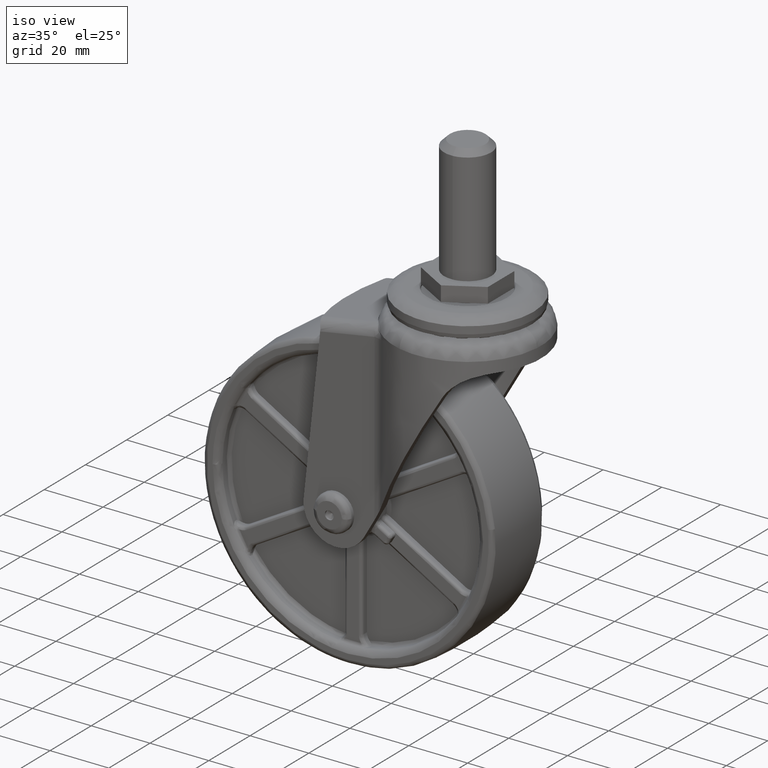
[diagram: clean part render]
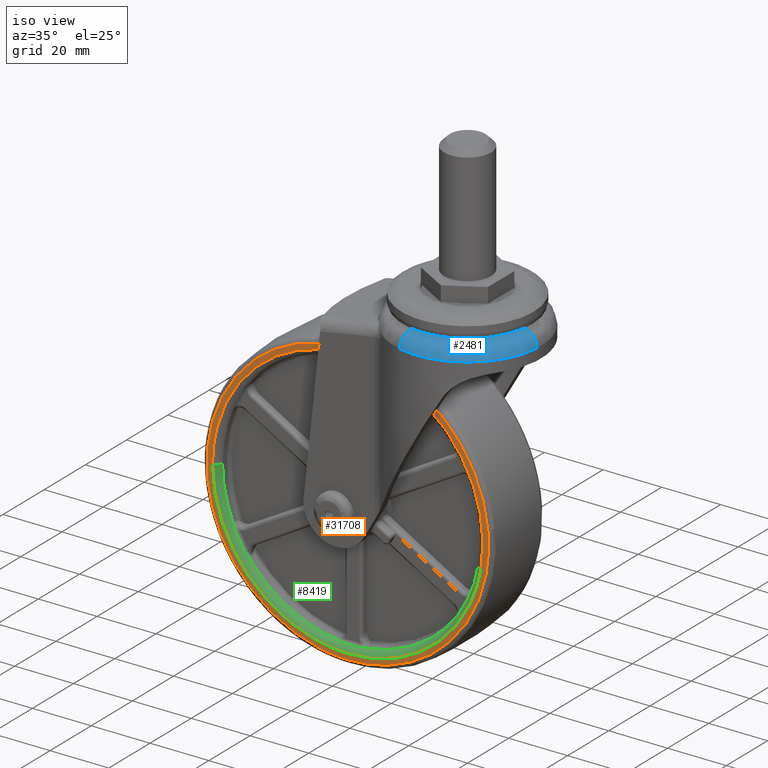
[diagram: same view with three faces highlighted in distinct colors, each labeled with its STEP entity id]
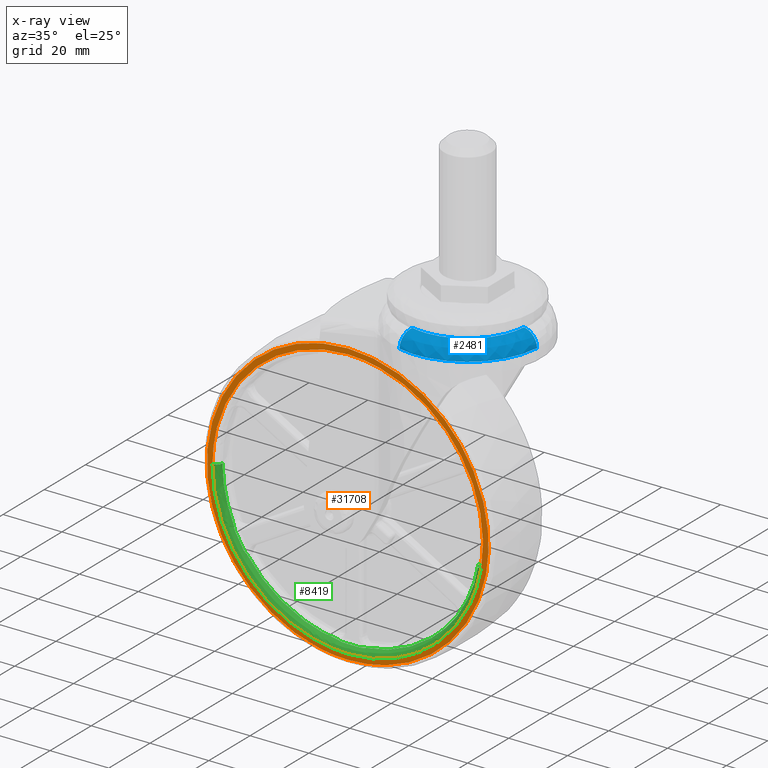
[diagram: x-ray of the same camera — body ghosted, the three highlighted faces saturated]
A machine part, iso view with three faces highlighted in distinct colors.
The next image is the same camera in x-ray (body ghosted, the three faces saturated) — at least one of them is partly hidden behind the body in this view.
Their STEP definitions:

[orange] entity #31708 — the highlighted face is a freeform B-spline surface patch.
#7899=CARTESIAN_POINT('',(45.293938481276633,-12.500000000000000,-8.028720409072545));
#7900=VERTEX_POINT('',#7899);
#7901=CARTESIAN_POINT('',(0.0,-12.500000000000000,46.000031999999813));
#7902=VERTEX_POINT('',#7901);
#7903=CARTESIAN_POINT('',(45.293938481276626,-12.500000000000000,-8.028720409072545));
#7904=CARTESIAN_POINT('',(46.000015999999896,-12.500000000000000,-4.045399771580460));
#7905=CARTESIAN_POINT('',(46.000015999999903,-12.500000000000000,0.000015999999905));
#7906=CARTESIAN_POINT('',(46.000015999999903,-12.499999999999998,46.000031999999813));
#7907=CARTESIAN_POINT('',(0.0,-12.500000000000000,46.000031999999813));
#7915=(BOUNDED_CURVE()B_SPLINE_CURVE(2,(#7903,#7904,#7905,#7906,#7907),.UNSPECIFIED.,.F.,.U.)B_SPLINE_CURVE_WITH_KNOTS((3,2,3),(0.219999999998722,0.250000000000000,0.500000000000000),.UNSPECIFIED.)CURVE()GEOMETRIC_REPRESENTATION_ITEM()RATIONAL_B_SPLINE_CURVE((0.938140952184322,0.964852813740888,1.0,0.707106781186547,1.0))REPRESENTATION_ITEM(''));
#7916=EDGE_CURVE('',#7900,#7902,#7915,.T.);
#7918=CARTESIAN_POINT('',(-46.000015999782612,-12.500000000000000,0.000015999999903));
#7919=VERTEX_POINT('',#7918);
#7920=CARTESIAN_POINT('',(0.0,-12.500000000000000,46.000031999999813));
#7921=CARTESIAN_POINT('',(-46.000015999999675,-12.499999999999998,46.000031999999813));
#7922=CARTESIAN_POINT('',(-46.000015999782605,-12.500000000000005,0.000015999999903));
#7930=(BOUNDED_CURVE()B_SPLINE_CURVE(2,(#7920,#7921,#7922),.UNSPECIFIED.,.F.,.U.)B_SPLINE_CURVE_WITH_KNOTS((3,3),(0.500000000000000,0.749999999999999),.UNSPECIFIED.)CURVE()GEOMETRIC_REPRESENTATION_ITEM()RATIONAL_B_SPLINE_CURVE((1.0,0.707106781186548,0.999999999999998))REPRESENTATION_ITEM(''));
#7931=EDGE_CURVE('',#7902,#7919,#7930,.T.);
#8188=CARTESIAN_POINT('',(0.0,-12.500000000000000,-46.0));
#8189=VERTEX_POINT('',#8188);
#8190=CARTESIAN_POINT('',(0.0,-12.500000000000000,-46.0));
#8191=CARTESIAN_POINT('',(38.563205740525859,-12.499999999999998,-46.0));
#8192=CARTESIAN_POINT('',(45.293938481276626,-12.500000000000000,-8.028720409072545));
#8200=(BOUNDED_CURVE()B_SPLINE_CURVE(2,(#8190,#8191,#8192),.UNSPECIFIED.,.F.,.U.)B_SPLINE_CURVE_WITH_KNOTS((3,3),(0.0,0.219999999998722),.UNSPECIFIED.)CURVE()GEOMETRIC_REPRESENTATION_ITEM()RATIONAL_B_SPLINE_CURVE((1.0,0.742253967445659,0.938140952184322))REPRESENTATION_ITEM(''));
#8201=EDGE_CURVE('',#8189,#7900,#8200,.T.);
#8404=CARTESIAN_POINT('',(-46.000015999782612,-12.500000000000000,0.000015999999903));
#8405=CARTESIAN_POINT('',(-46.000015999999903,-12.499999999999998,-46.000000000000014));
#8406=CARTESIAN_POINT('',(0.0,-12.500000000000000,-46.0));
#8414=(BOUNDED_CURVE()B_SPLINE_CURVE(2,(#8404,#8405,#8406),.UNSPECIFIED.,.F.,.U.)B_SPLINE_CURVE_WITH_KNOTS((3,3),(0.750000000000000,1.0),.UNSPECIFIED.)CURVE()GEOMETRIC_REPRESENTATION_ITEM()RATIONAL_B_SPLINE_CURVE((1.0,0.707106781186547,1.0))REPRESENTATION_ITEM(''));
#8415=EDGE_CURVE('',#7919,#8189,#8414,.T.);
#8437=CARTESIAN_POINT('',(13.047281524651630,-12.499999999999870,-46.072017325498422));
#8438=VERTEX_POINT('',#8437);
#8439=CARTESIAN_POINT('',(47.642092715833982,-12.499999999999860,4.805722052717872));
#8440=VERTEX_POINT('',#8439);
#8441=CARTESIAN_POINT('',(13.047281524651623,-12.499999999999867,-46.072017325498422));
#8442=CARTESIAN_POINT('',(47.883857476401104,-12.499999999999799,-36.206539668898579));
#8443=CARTESIAN_POINT('',(47.883857476401097,-12.499999999999799,0.000015999999905));
#8444=CARTESIAN_POINT('',(47.883857476401104,-12.499999999999796,2.408950359752350));
#8445=CARTESIAN_POINT('',(47.642092715833982,-12.499999999999867,4.805722052717872));
#8453=(BOUNDED_CURVE()B_SPLINE_CURVE(2,(#8441,#8442,#8443,#8444,#8445),.UNSPECIFIED.,.F.,.U.)B_SPLINE_CURVE_WITH_KNOTS((3,2,3),(0.046426116459208,0.250000000000000,0.267423441084999),.UNSPECIFIED.)CURVE()GEOMETRIC_REPRESENTATION_ITEM()RATIONAL_B_SPLINE_CURVE((0.911418360660495,0.761498359933530,1.0,0.979587169031232,0.962019632124563))REPRESENTATION_ITEM(''));
#8454=EDGE_CURVE('',#8438,#8440,#8453,.T.);
#8539=CARTESIAN_POINT('',(0.0,-12.499999999999799,-47.883841476401201));
#8540=VERTEX_POINT('',#8539);
#8541=CARTESIAN_POINT('',(0.0,-12.499999999999799,-47.883841476401201));
#8542=CARTESIAN_POINT('',(6.649441173433361,-12.499999999999805,-47.883841476401201));
#8543=CARTESIAN_POINT('',(13.047281524651623,-12.499999999999867,-46.072017325498422));
#8551=(BOUNDED_CURVE()B_SPLINE_CURVE(2,(#8541,#8542,#8543),.UNSPECIFIED.,.F.,.U.)B_SPLINE_CURVE_WITH_KNOTS((3,3),(0.0,0.046426116459208),.UNSPECIFIED.)CURVE()GEOMETRIC_REPRESENTATION_ITEM()RATIONAL_B_SPLINE_CURVE((1.0,0.945608421253017,0.911418360660495))REPRESENTATION_ITEM(''));
#8552=EDGE_CURVE('',#8540,#8438,#8551,.T.);
#8554=CARTESIAN_POINT('',(0.0,-12.499999999999799,47.883873476401000));
#8555=VERTEX_POINT('',#8554);
#8556=CARTESIAN_POINT('',(0.0,-12.499999999999799,47.883873476401000));
#8557=CARTESIAN_POINT('',(-47.883857476401097,-12.499999999999797,47.883873476400986));
#8558=CARTESIAN_POINT('',(-47.883857476401097,-12.499999999999799,0.000015999999905));
#8559=CARTESIAN_POINT('',(-47.883857476401097,-12.499999999999797,-47.883841476401201));
#8560=CARTESIAN_POINT('',(0.0,-12.499999999999799,-47.883841476401201));
#8568=(BOUNDED_CURVE()B_SPLINE_CURVE(2,(#8556,#8557,#8558,#8559,#8560),.UNSPECIFIED.,.F.,.U.)B_SPLINE_CURVE_WITH_KNOTS((3,2,3),(0.500000000000000,0.750000000000000,1.0),.UNSPECIFIED.)CURVE()GEOMETRIC_REPRESENTATION_ITEM()RATIONAL_B_SPLINE_CURVE((1.0,0.707106781186547,1.0,0.707106781186547,1.0))REPRESENTATION_ITEM(''));
#8569=EDGE_CURVE('',#8555,#8540,#8568,.T.);
#8571=CARTESIAN_POINT('',(47.642092715833989,-12.499999999999863,4.805722052717872));
#8572=CARTESIAN_POINT('',(43.296756011516003,-12.499999999999797,47.883873476401000));
#8573=CARTESIAN_POINT('',(0.0,-12.499999999999799,47.883873476401000));
#8581=(BOUNDED_CURVE()B_SPLINE_CURVE(2,(#8571,#8572,#8573),.UNSPECIFIED.,.F.,.U.)B_SPLINE_CURVE_WITH_KNOTS((3,3),(0.267423441084999,0.500000000000000),.UNSPECIFIED.)CURVE()GEOMETRIC_REPRESENTATION_ITEM()RATIONAL_B_SPLINE_CURVE((0.962019632124563,0.727519612155315,1.0))REPRESENTATION_ITEM(''));
#8582=EDGE_CURVE('',#8440,#8555,#8581,.T.);
#31691=CARTESIAN_POINT('',(-52.667388072905418,-12.500000000000000,-52.667439551676047));
#31692=CARTESIAN_POINT('',(-52.667388072905418,-12.500000000000000,52.667473264136042));
#31693=CARTESIAN_POINT('',(52.666038862002772,-12.500000000000000,-52.667439551676047));
#31694=CARTESIAN_POINT('',(52.666038862002772,-12.500000000000000,52.667473264136042));
#31695=B_SPLINE_SURFACE_WITH_KNOTS('',1,1,((#31691,#31693),(#31692,#31694)),.UNSPECIFIED.,.F.,.F.,.U.,(2,2),(2,2),(0.0,105.334912815812100),(0.0,105.333426934908200),.UNSPECIFIED.);
#31696=ORIENTED_EDGE('',*,*,#8552,.T.);
#31697=ORIENTED_EDGE('',*,*,#8454,.T.);
#31698=ORIENTED_EDGE('',*,*,#8582,.T.);
#31699=ORIENTED_EDGE('',*,*,#8569,.T.);
#31700=EDGE_LOOP('',(#31696,#31697,#31698,#31699));
#31701=FACE_OUTER_BOUND('',#31700,.T.);
#31702=ORIENTED_EDGE('',*,*,#7931,.F.);
#31703=ORIENTED_EDGE('',*,*,#7916,.F.);
#31704=ORIENTED_EDGE('',*,*,#8201,.F.);
#31705=ORIENTED_EDGE('',*,*,#8415,.F.);
#31706=EDGE_LOOP('',(#31702,#31703,#31704,#31705));
#31707=FACE_BOUND('',#31706,.T.);
#31708=ADVANCED_FACE('',(#31701,#31707),#31695,.F.);

[blue] entity #2481 — the highlighted face is a freeform B-spline surface patch.
#1932=CARTESIAN_POINT('',(26.969912259548838,-19.631068602107771,64.092954920131646));
#1933=VERTEX_POINT('',#1932);
#1947=CARTESIAN_POINT('',(32.0,-20.265256893034088,64.092954920389403));
#1948=VERTEX_POINT('',#1947);
#1949=CARTESIAN_POINT('',(26.969912259548842,-19.631068602107774,64.092954920131660));
#1950=CARTESIAN_POINT('',(29.444977225694672,-20.265256893034085,64.092954920389417));
#1951=CARTESIAN_POINT('',(32.0,-20.265256893034088,64.092954920389403));
#1959=(BOUNDED_CURVE()B_SPLINE_CURVE(2,(#1949,#1950,#1951),.UNSPECIFIED.,.F.,.U.)B_SPLINE_CURVE_WITH_KNOTS((3,3),(0.957636715734862,1.0),.UNSPECIFIED.)CURVE()GEOMETRIC_REPRESENTATION_ITEM()RATIONAL_B_SPLINE_CURVE((0.917557136465086,0.950368325248298,1.0))REPRESENTATION_ITEM(''));
#1960=EDGE_CURVE('',#1933,#1948,#1959,.T.);
#1962=CARTESIAN_POINT('',(52.207681284533273,-1.526517066455569,64.092954919982020));
#1963=VERTEX_POINT('',#1962);
#1964=CARTESIAN_POINT('',(32.0,-20.265256893034088,64.092954920389403));
#1965=CARTESIAN_POINT('',(50.792130142412738,-20.265256893034088,64.092954920389417));
#1966=CARTESIAN_POINT('',(52.207681284533280,-1.526517066455569,64.092954919982034));
#1974=(BOUNDED_CURVE()B_SPLINE_CURVE(2,(#1964,#1965,#1966),.UNSPECIFIED.,.F.,.U.)B_SPLINE_CURVE_WITH_KNOTS((3,3),(0.0,0.236870159246673),.UNSPECIFIED.)CURVE()GEOMETRIC_REPRESENTATION_ITEM()RATIONAL_B_SPLINE_CURVE((1.0,0.722489346469547,0.970850634494348))REPRESENTATION_ITEM(''));
#1975=EDGE_CURVE('',#1948,#1963,#1974,.T.);
#2409=CARTESIAN_POINT('',(25.797552058391645,-24.206472597770535,58.760645968007523));
#2410=CARTESIAN_POINT('',(27.926361013958630,-24.751939380309938,58.760645968007509));
#2411=CARTESIAN_POINT('',(30.117698314826253,-24.917476125421903,58.760645968007523));
#2412=CARTESIAN_POINT('',(55.035174440248142,-26.799777810595643,58.760645968007502));
#2413=CARTESIAN_POINT('',(56.917476125421899,-1.882301685173753,58.760645968007523));
#2414=CARTESIAN_POINT('',(25.706069290830669,-24.563505035121239,64.178600961011171));
#2415=CARTESIAN_POINT('',(27.866277032279811,-25.117017159007968,64.178600961011171));
#2416=CARTESIAN_POINT('',(30.089935378455724,-25.284995481980541,64.178600961011199));
#2417=CARTESIAN_POINT('',(55.374930860436251,-27.195060103524813,64.178600961011171));
#2418=CARTESIAN_POINT('',(57.284995481980545,-1.910064621544283,64.178600961011199));
#2419=CARTESIAN_POINT('',(27.053837742560908,-19.303530199042537,64.099465073866227));
#2420=CARTESIAN_POINT('',(28.751463358841914,-19.738514456529678,64.099465073866241));
#2421=CARTESIAN_POINT('',(30.498952407183580,-19.870522271605314,64.099465073866256));
#2422=CARTESIAN_POINT('',(50.369474678788897,-21.371569864421726,64.099465073866241));
#2423=CARTESIAN_POINT('',(51.870522271605317,-1.501047592816425,64.099465073866256));
#2431=(BOUNDED_SURFACE()B_SPLINE_SURFACE(2,2,((#2409,#2414,#2419),(#2410,#2415,#2420),(#2411,#2416,#2421),(#2412,#2417,#2422),(#2413,#2418,#2423)),.UNSPECIFIED.,.F.,.F.,.U.)B_SPLINE_SURFACE_WITH_KNOTS((3,2,3),(3,3),(0.0,4.968270496616766,46.370524635089780),(0.0,8.771739623110403),.UNSPECIFIED.)GEOMETRIC_REPRESENTATION_ITEM()RATIONAL_B_SPLINE_SURFACE(((0.855134330751830,0.580428527459014,0.858698242481451),(0.879482729360166,0.596955176713987,0.883148117010327),(0.911520095950082,0.618700767838952,0.915319004548321),(0.644542041034115,0.437487508464247,0.647228275065038),(0.911520095950082,0.618700767838952,0.915319004548321)))REPRESENTATION_ITEM('')SURFACE());
#2432=CARTESIAN_POINT('',(56.928972506515372,-1.883170138198115,59.099996000591162));
#2433=VERTEX_POINT('',#2432);
#2434=CARTESIAN_POINT('',(25.794690383924191,-24.217640937313341,59.099996000639081));
#2435=VERTEX_POINT('',#2434);
#2436=CARTESIAN_POINT('',(56.928972506515372,-1.883170138198115,59.099996000591162));
#2437=CARTESIAN_POINT('',(56.241203337601270,-10.987699970587959,59.099995999999791));
#2438=CARTESIAN_POINT('',(49.847679665429922,-17.506008413119179,59.099995999999798));
#2439=CARTESIAN_POINT('',(39.755757235870917,-27.794898631871423,59.099995999999813));
#2440=CARTESIAN_POINT('',(25.794690383924184,-24.217640937313345,59.099996000639081));
#2448=(BOUNDED_CURVE()B_SPLINE_CURVE(2,(#2436,#2437,#2438,#2439,#2440),.UNSPECIFIED.,.F.,.U.)B_SPLINE_CURVE_WITH_KNOTS((3,2,3),(0.515386032396076,0.666666666666667,0.888775045343579),.UNSPECIFIED.)CURVE()GEOMETRIC_REPRESENTATION_ITEM()RATIONAL_B_SPLINE_CURVE((0.858172621695735,0.870159044574793,1.0,0.809369095823786,0.872782517961328))REPRESENTATION_ITEM(''));
#2449=EDGE_CURVE('',#2433,#2435,#2448,.T.);
#2450=ORIENTED_EDGE('',*,*,#2449,.F.);
#2451=CARTESIAN_POINT('',(56.928972506515365,-1.883170138198116,59.099996000591162));
#2452=CARTESIAN_POINT('',(56.928972505396970,-1.883170138113829,63.841416035649090));
#2453=CARTESIAN_POINT('',(52.207681284533273,-1.526517066455569,64.092954919982020));
#2461=(BOUNDED_CURVE()B_SPLINE_CURVE(2,(#2451,#2452,#2453),.UNSPECIFIED.,.F.,.U.)B_SPLINE_CURVE_WITH_KNOTS((3,3),(-1.716453736593590,-0.273316165559243),.UNSPECIFIED.)CURVE()GEOMETRIC_REPRESENTATION_ITEM()RATIONAL_B_SPLINE_CURVE((0.886139893874123,0.644253500662695,0.889593740708974))REPRESENTATION_ITEM(''));
#2462=EDGE_CURVE('',#2433,#1963,#2461,.T.);
#2463=ORIENTED_EDGE('',*,*,#2462,.T.);
#2464=ORIENTED_EDGE('',*,*,#1975,.F.);
#2465=ORIENTED_EDGE('',*,*,#1960,.F.);
#2466=CARTESIAN_POINT('',(25.794690383924195,-24.217640937313345,59.099996000639095));
#2467=CARTESIAN_POINT('',(25.794690384224026,-24.217640936138594,63.841416041010930));
#2468=CARTESIAN_POINT('',(26.969912259548831,-19.631068602107764,64.092954920131646));
#2476=(BOUNDED_CURVE()B_SPLINE_CURVE(2,(#2466,#2467,#2468),.UNSPECIFIED.,.F.,.U.)B_SPLINE_CURVE_WITH_KNOTS((3,3),(-1.716453736573530,-0.273316164373814),.UNSPECIFIED.)CURVE()GEOMETRIC_REPRESENTATION_ITEM()RATIONAL_B_SPLINE_CURVE((0.831324123803293,0.604400592378049,0.834564319346080))REPRESENTATION_ITEM(''));
#2477=EDGE_CURVE('',#2435,#1933,#2476,.T.);
#2478=ORIENTED_EDGE('',*,*,#2477,.F.);
#2479=EDGE_LOOP('',(#2450,#2463,#2464,#2465,#2478));
#2480=FACE_OUTER_BOUND('',#2479,.T.);
#2481=ADVANCED_FACE('',(#2480),#2431,.T.);

[green] entity #8419 — the highlighted face is a freeform B-spline surface patch.
#7899=CARTESIAN_POINT('',(45.293938481276633,-12.500000000000000,-8.028720409072545));
#7900=VERTEX_POINT('',#7899);
#7918=CARTESIAN_POINT('',(-46.000015999782612,-12.500000000000000,0.000015999999903));
#7919=VERTEX_POINT('',#7918);
#7933=CARTESIAN_POINT('',(-44.000015999999903,-10.500000000989001,0.000015999999903));
#7934=VERTEX_POINT('',#7933);
#7935=CARTESIAN_POINT('',(-46.000015999782612,-12.500000000000002,0.000015999999903));
#7936=CARTESIAN_POINT('',(-44.000016001977890,-12.499999999565423,0.000015999999903));
#7937=CARTESIAN_POINT('',(-44.000015999999896,-10.500000000988997,0.000015999999903));
#7945=(BOUNDED_CURVE()B_SPLINE_CURVE(2,(#7935,#7936,#7937),.UNSPECIFIED.,.F.,.U.)B_SPLINE_CURVE_WITH_KNOTS((3,3),(-1.726807299291639,-0.285995335049995),.UNSPECIFIED.)CURVE()GEOMETRIC_REPRESENTATION_ITEM()RATIONAL_B_SPLINE_CURVE((0.882788776138873,0.622603437960140,0.878205638697899))REPRESENTATION_ITEM(''));
#7946=EDGE_CURVE('',#7919,#7934,#7945,.T.);
#8134=CARTESIAN_POINT('',(43.324637498588991,-10.500000001020981,-7.679645035234842));
#8135=VERTEX_POINT('',#8134);
#8149=CARTESIAN_POINT('',(45.293938481276641,-12.500000000000002,-8.028720409072545));
#8150=CARTESIAN_POINT('',(43.324637500599572,-12.499999988517210,-7.679645035591385));
#8151=CARTESIAN_POINT('',(43.324637498588991,-10.500000001020982,-7.679645035234842));
#8159=(BOUNDED_CURVE()B_SPLINE_CURVE(2,(#8149,#8150,#8151),.UNSPECIFIED.,.F.,.U.)B_SPLINE_CURVE_WITH_KNOTS((3,3),(-1.726807293648970,-0.285995335082501),.UNSPECIFIED.)CURVE()GEOMETRIC_REPRESENTATION_ITEM()RATIONAL_B_SPLINE_CURVE((0.828180301114695,0.584089783067178,0.823880674092867))REPRESENTATION_ITEM(''));
#8160=EDGE_CURVE('',#7900,#8135,#8159,.T.);
#8165=CARTESIAN_POINT('',(-46.138717737874487,-12.495184660103060,0.000015999999904));
#8166=CARTESIAN_POINT('',(-46.138717737874508,-12.495184660103060,-46.138701737874591));
#8167=CARTESIAN_POINT('',(-5.650177E-015,-12.495184660103060,-46.138701737874605));
#8168=CARTESIAN_POINT('',(38.679483605910818,-12.495184660103064,-46.138701737874605));
#8169=CARTESIAN_POINT('',(45.430511221703512,-12.495184660103064,-8.052929090457713));
#8170=CARTESIAN_POINT('',(-43.844537356109534,-12.654672056087859,0.000015999999904));
#8171=CARTESIAN_POINT('',(-43.844537356109541,-12.654672056087858,-43.844521356109631));
#8172=CARTESIAN_POINT('',(-5.369230E-015,-12.654672056087859,-43.844521356109645));
#8173=CARTESIAN_POINT('',(36.756202751648203,-12.654672056087859,-43.844521356109631));
#8174=CARTESIAN_POINT('',(43.171545375046975,-12.654672056087858,-7.652508152300763));
#8175=CARTESIAN_POINT('',(-44.004883392036774,-10.360551526927354,0.000015999999904));
#8176=CARTESIAN_POINT('',(-44.004883392036774,-10.360551526927354,-44.004867392036871));
#8177=CARTESIAN_POINT('',(-5.388866E-015,-10.360551526927354,-44.004867392036864));
#8178=CARTESIAN_POINT('',(36.890625686918227,-10.360551526927349,-44.004867392036864));
#8179=CARTESIAN_POINT('',(43.329430178563477,-10.360551526927351,-7.680494578584445));
#8187=(BOUNDED_SURFACE()B_SPLINE_SURFACE(2,2,((#8165,#8170,#8175),(#8166,#8171,#8176),(#8167,#8172,#8177),(#8168,#8173,#8178),(#8169,#8174,#8179)),.UNSPECIFIED.,.F.,.F.,.U.)B_SPLINE_SURFACE_WITH_KNOTS((3,2,3),(3,3),(0.0,76.445130550126834,143.716845434238510),(0.0,3.644741489769000),.UNSPECIFIED.)GEOMETRIC_REPRESENTATION_ITEM()RATIONAL_B_SPLINE_SURFACE(((0.910068305580795,0.595552895635508,0.905027195777847),(0.643515470219132,0.421119491059152,0.639950867292760),(0.910068305580795,0.595552895635508,0.905027195777847),(0.675501810462531,0.442051499608314,0.671760026710971),(0.853772346752412,0.558712560588981,0.849043075201796)))REPRESENTATION_ITEM('')SURFACE());
#8188=CARTESIAN_POINT('',(0.0,-12.500000000000000,-46.0));
#8189=VERTEX_POINT('',#8188);
#8190=CARTESIAN_POINT('',(0.0,-12.500000000000000,-46.0));
#8191=CARTESIAN_POINT('',(38.563205740525859,-12.499999999999998,-46.0));
#8192=CARTESIAN_POINT('',(45.293938481276626,-12.500000000000000,-8.028720409072545));
#8200=(BOUNDED_CURVE()B_SPLINE_CURVE(2,(#8190,#8191,#8192),.UNSPECIFIED.,.F.,.U.)B_SPLINE_CURVE_WITH_KNOTS((3,3),(0.0,0.219999999998722),.UNSPECIFIED.)CURVE()GEOMETRIC_REPRESENTATION_ITEM()RATIONAL_B_SPLINE_CURVE((1.0,0.742253967445659,0.938140952184322))REPRESENTATION_ITEM(''));
#8201=EDGE_CURVE('',#8189,#7900,#8200,.T.);
#8202=ORIENTED_EDGE('',*,*,#8201,.T.);
#8203=ORIENTED_EDGE('',*,*,#8160,.T.);
#8204=CARTESIAN_POINT('',(40.118443753310451,-10.500000000000000,-18.069623697921902));
#8205=VERTEX_POINT('',#8204);
#8206=CARTESIAN_POINT('',(40.118443753310473,-10.500000000000000,-18.069623697921902));
#8207=CARTESIAN_POINT('',(42.368398669729366,-10.500000000000004,-13.074245191718624));
#8208=CARTESIAN_POINT('',(43.324637498588991,-10.500000001020981,-7.679645035234842));
#8216=(BOUNDED_CURVE()B_SPLINE_CURVE(2,(#8206,#8207,#8208),.UNSPECIFIED.,.F.,.U.)B_SPLINE_CURVE_WITH_KNOTS((3,3),(0.0,0.295300712722245),.UNSPECIFIED.)CURVE()GEOMETRIC_REPRESENTATION_ITEM()RATIONAL_B_SPLINE_CURVE((1.0,0.973949360840993,0.963284266303036))REPRESENTATION_ITEM(''));
#8217=EDGE_CURVE('',#8205,#8135,#8216,.T.);
#8218=ORIENTED_EDGE('',*,*,#8217,.F.);
#8219=CARTESIAN_POINT('',(39.453646345311448,-10.833333333333339,-19.541571478034101));
#8220=VERTEX_POINT('',#8219);
#8221=CARTESIAN_POINT('',(40.118443753310451,-10.500000000000000,-18.069623697921902));
#8222=CARTESIAN_POINT('',(40.066106034722807,-10.555534149519030,-18.185824566032391));
#8223=CARTESIAN_POINT('',(40.014406278073551,-10.604382256675541,-18.304825488480560));
#8224=CARTESIAN_POINT('',(39.909332556225039,-10.688103293614811,-18.547364860841320));
#8225=CARTESIAN_POINT('',(39.855797982633042,-10.723052136331811,-18.671246132333678));
#8226=CARTESIAN_POINT('',(39.746455725023907,-10.778383264959411,-18.919164311274919));
#8227=CARTESIAN_POINT('',(39.690516530061309,-10.798940711745161,-19.043525651177141));
#8228=CARTESIAN_POINT('',(39.574957471281287,-10.826409011963950,-19.292447328135911));
#8229=CARTESIAN_POINT('',(39.515343096318027,-10.833333333333290,-19.417008322782749));
#8230=CARTESIAN_POINT('',(39.453646345311448,-10.833333333333339,-19.541571478034101));
#8231=B_SPLINE_CURVE_WITH_KNOTS('',3,(#8221,#8222,#8223,#8224,#8225,#8226,#8227,#8228,#8229,#8230),.UNSPECIFIED.,.F.,.U.,(4,2,2,2,4),(0.0,0.250000000000000,0.500000000000000,0.750000000000000,1.0),.UNSPECIFIED.);
#8232=EDGE_CURVE('',#8205,#8220,#8231,.T.);
#8233=ORIENTED_EDGE('',*,*,#8232,.T.);
#8234=CARTESIAN_POINT('',(36.650319252802802,-10.833333333333339,-24.397072960984701));
#8235=VERTEX_POINT('',#8234);
#8236=CARTESIAN_POINT('',(39.453646345311491,-10.833333333333320,-19.541571478034129));
#8237=CARTESIAN_POINT('',(38.206875480835613,-10.833333333333320,-22.058749614967052));
#8238=CARTESIAN_POINT('',(36.650319252802838,-10.833333333333320,-24.397072960984708));
#8246=(BOUNDED_CURVE()B_SPLINE_CURVE(2,(#8236,#8237,#8238),.UNSPECIFIED.,.F.,.U.)CURVE()GEOMETRIC_REPRESENTATION_ITEM()QUASI_UNIFORM_CURVE()RATIONAL_B_SPLINE_CURVE((1.0,0.997970915121706,1.0))REPRESENTATION_ITEM(''));
#8247=EDGE_CURVE('',#8220,#8235,#8246,.T.);
#8248=ORIENTED_EDGE('',*,*,#8247,.T.);
#8249=CARTESIAN_POINT('',(35.707973834255000,-10.500000000000000,-25.708776516421551));
#8250=VERTEX_POINT('',#8249);
#8251=CARTESIAN_POINT('',(36.650319252802802,-10.833333333333339,-24.397072960984701));
#8252=CARTESIAN_POINT('',(36.573306741766352,-10.833333333333350,-24.512764350250851));
#8253=CARTESIAN_POINT('',(36.495074255358901,-10.826411375329910,-24.626922507808189));
#8254=CARTESIAN_POINT('',(36.376193843874717,-10.805673351860520,-24.796070026283211));
#8255=CARTESIAN_POINT('',(36.336316593622222,-10.797026687121519,-24.852106800914051));
#8256=CARTESIAN_POINT('',(36.256173906347350,-10.776187622213770,-24.963559548037260));
#8257=CARTESIAN_POINT('',(36.215955051833511,-10.763999834412090,-25.018908812008370));
#8258=CARTESIAN_POINT('',(36.095818709328213,-10.722306056279610,-25.183014891052590));
#8259=CARTESIAN_POINT('',(36.016133099381967,-10.687600992278851,-25.290185524057769));
#8260=CARTESIAN_POINT('',(35.859428611727679,-10.604226131822090,-25.501370976007760));
#8261=CARTESIAN_POINT('',(35.782417875165393,-10.555519268980500,-25.605378199940489));
#8262=CARTESIAN_POINT('',(35.707973834255000,-10.500000000000000,-25.708776516421551));
#8263=B_SPLINE_CURVE_WITH_KNOTS('',3,(#8251,#8252,#8253,#8254,#8255,#8256,#8257,#8258,#8259,#8260,#8261,#8262),.UNSPECIFIED.,.F.,.U.,(4,2,2,2,2,4),(0.0,0.249999999999991,0.374999999999990,0.499999999999989,0.749999999999994,1.0),.UNSPECIFIED.);
#8264=EDGE_CURVE('',#8235,#8250,#8263,.T.);
#8265=ORIENTED_EDGE('',*,*,#8264,.T.);
#8266=CARTESIAN_POINT('',(4.410459900544764,-10.500000000000000,-43.778394791918252));
#8267=VERTEX_POINT('',#8266);
#8268=CARTESIAN_POINT('',(4.410459900544763,-10.500000000000000,-43.778394791918231));
#8269=CARTESIAN_POINT('',(24.128556996435613,-10.500000000000000,-41.791893341012901));
#8270=CARTESIAN_POINT('',(35.707973834254993,-10.500000000000000,-25.708776516421540));
#8278=(BOUNDED_CURVE()B_SPLINE_CURVE(2,(#8268,#8269,#8270),.UNSPECIFIED.,.F.,.U.)CURVE()GEOMETRIC_REPRESENTATION_ITEM()QUASI_UNIFORM_CURVE()RATIONAL_B_SPLINE_CURVE((1.0,0.911782624924028,1.0))REPRESENTATION_ITEM(''));
#8279=EDGE_CURVE('',#8267,#8250,#8278,.T.);
#8280=ORIENTED_EDGE('',*,*,#8279,.F.);
#8281=CARTESIAN_POINT('',(2.803320422803545,-10.833333333333339,-43.938637207735752));
#8282=VERTEX_POINT('',#8281);
#8283=CARTESIAN_POINT('',(4.410459900544764,-10.500000000000000,-43.778394791918252));
#8284=CARTESIAN_POINT('',(4.283658452308537,-10.555534202971780,-43.791169415132153));
#8285=CARTESIAN_POINT('',(4.154751047995728,-10.604382328994269,-43.805896565324822));
#8286=CARTESIAN_POINT('',(3.892169495805590,-10.688103377983040,-43.836169727224778));
#8287=CARTESIAN_POINT('',(3.758118157308873,-10.723052211310691,-43.851748058519377));
#8288=CARTESIAN_POINT('',(3.488744152801936,-10.778383312116150,-43.881013968684883));
#8289=CARTESIAN_POINT('',(3.353074754850528,-10.798940742852260,-43.894749873363452));
#8290=CARTESIAN_POINT('',(3.079723282710091,-10.826409019616850,-43.919133635055772));
#8291=CARTESIAN_POINT('',(2.942043383438908,-10.833333333333311,-43.929786574403010));
#8292=CARTESIAN_POINT('',(2.803320422803545,-10.833333333333339,-43.938637207735752));
#8293=B_SPLINE_CURVE_WITH_KNOTS('',3,(#8283,#8284,#8285,#8286,#8287,#8288,#8289,#8290,#8291,#8292),.UNSPECIFIED.,.F.,.U.,(4,2,2,2,4),(0.0,0.250000000000000,0.500000000000000,0.750000000000000,1.0),.UNSPECIFIED.);
#8294=EDGE_CURVE('',#8267,#8282,#8293,.T.);
#8295=ORIENTED_EDGE('',*,*,#8294,.T.);
#8296=CARTESIAN_POINT('',(-2.803320422803330,-10.833333333333339,-43.938637207735752));
#8297=VERTEX_POINT('',#8296);
#8298=CARTESIAN_POINT('',(2.803320422803533,-10.833333333333339,-43.938637207735667));
#8299=CARTESIAN_POINT('',(1.162265E-013,-10.833333333333345,-44.117491242149335));
#8300=CARTESIAN_POINT('',(-2.803320422803308,-10.833333333333339,-43.938637207735681));
#8308=(BOUNDED_CURVE()B_SPLINE_CURVE(2,(#8298,#8299,#8300),.UNSPECIFIED.,.F.,.U.)CURVE()GEOMETRIC_REPRESENTATION_ITEM()QUASI_UNIFORM_CURVE()RATIONAL_B_SPLINE_CURVE((1.0,0.997970922608465,1.0))REPRESENTATION_ITEM(''));
#8309=EDGE_CURVE('',#8282,#8297,#8308,.T.);
#8310=ORIENTED_EDGE('',*,*,#8309,.T.);
#8311=CARTESIAN_POINT('',(-4.410459900553575,-10.500000000000000,-43.778394791917350));
#8312=VERTEX_POINT('',#8311);
#8313=CARTESIAN_POINT('',(-2.803320422803330,-10.833333333333339,-43.938637207735752));
#8314=CARTESIAN_POINT('',(-2.942018212184021,-10.833333333333339,-43.929788180349078));
#8315=CARTESIAN_POINT('',(-3.079998173596382,-10.826411379615189,-43.919116009259362));
#8316=CARTESIAN_POINT('',(-3.285924210236148,-10.805673364830509,-43.900736419995283));
#8317=CARTESIAN_POINT('',(-3.354392033762680,-10.797026703354080,-43.894220131789723));
#8318=CARTESIAN_POINT('',(-3.490984144399297,-10.776187644721039,-43.880540975053187));
#8319=CARTESIAN_POINT('',(-3.559027363587146,-10.763999860859780,-43.873385094422062));
#8320=CARTESIAN_POINT('',(-3.761215339845060,-10.722306093336719,-43.851397120378273));
#8321=CARTESIAN_POINT('',(-3.893870481848676,-10.687601035491120,-43.835972748310994));
#8322=CARTESIAN_POINT('',(-4.155114376576393,-10.604226171681720,-43.805855555233663));
#8323=CARTESIAN_POINT('',(-4.283692481286845,-10.555519299577970,-43.791165986879562));
#8324=CARTESIAN_POINT('',(-4.410459900553575,-10.500000000000000,-43.778394791917350));
#8325=B_SPLINE_CURVE_WITH_KNOTS('',3,(#8313,#8314,#8315,#8316,#8317,#8318,#8319,#8320,#8321,#8322,#8323,#8324),.UNSPECIFIED.,.F.,.U.,(4,2,2,2,2,4),(0.0,0.250000000000001,0.375000000000001,0.500000000000001,0.750000000000000,1.0),.UNSPECIFIED.);
#8326=EDGE_CURVE('',#8297,#8312,#8325,.T.);
#8327=ORIENTED_EDGE('',*,*,#8326,.T.);
#8328=CARTESIAN_POINT('',(-35.707973834270199,-10.500000000000000,-25.708776516400501));
#8329=VERTEX_POINT('',#8328);
#8330=CARTESIAN_POINT('',(-35.707973834270177,-10.500000000000000,-25.708776516400459));
#8331=CARTESIAN_POINT('',(-24.128556996454286,-10.500000000000000,-41.791893341007032));
#8332=CARTESIAN_POINT('',(-4.410459900553573,-10.500000000000000,-43.778394791917343));
#8340=(BOUNDED_CURVE()B_SPLINE_CURVE(2,(#8330,#8331,#8332),.UNSPECIFIED.,.F.,.U.)CURVE()GEOMETRIC_REPRESENTATION_ITEM()QUASI_UNIFORM_CURVE()RATIONAL_B_SPLINE_CURVE((1.0,0.911782624923948,1.0))REPRESENTATION_ITEM(''));
#8341=EDGE_CURVE('',#8329,#8312,#8340,.T.);
#8342=ORIENTED_EDGE('',*,*,#8341,.F.);
#8343=CARTESIAN_POINT('',(-36.650319252802653,-10.833333333333339,-24.397072960984900));
#8344=VERTEX_POINT('',#8343);
#8345=CARTESIAN_POINT('',(-35.707973834270199,-10.500000000000000,-25.708776516400501));
#8346=CARTESIAN_POINT('',(-35.782437859207938,-10.555534172785549,-25.605350443302410));
#8347=CARTESIAN_POINT('',(-35.859645791088568,-10.604382288150530,-25.501076830506591));
#8348=CARTESIAN_POINT('',(-36.017154173965110,-10.688103330332771,-25.288810927263899));
#8349=CARTESIAN_POINT('',(-36.097671211775960,-10.723052168963219,-25.180508137315339));
#8350=CARTESIAN_POINT('',(-36.257703515643257,-10.778383285482249,-24.961856172411231));
#8351=CARTESIAN_POINT('',(-36.337433995764641,-10.798940725283099,-24.851230886165268));
#8352=CARTESIAN_POINT('',(-36.495226963512899,-10.826409015294510,-24.626693260916561));
#8353=CARTESIAN_POINT('',(-36.573292765077930,-10.833333333333290,-24.512785346611420));
#8354=CARTESIAN_POINT('',(-36.650319252802653,-10.833333333333339,-24.397072960984900));
#8355=B_SPLINE_CURVE_WITH_KNOTS('',3,(#8345,#8346,#8347,#8348,#8349,#8350,#8351,#8352,#8353,#8354),.UNSPECIFIED.,.F.,.U.,(4,2,2,2,4),(0.0,0.250000000000000,0.500000000000000,0.750000000000000,1.0),.UNSPECIFIED.);
#8356=EDGE_CURVE('',#8329,#8344,#8355,.T.);
#8357=ORIENTED_EDGE('',*,*,#8356,.T.);
#8358=CARTESIAN_POINT('',(-39.453646345311348,-10.833333333333339,-19.541571478034300));
#8359=VERTEX_POINT('',#8358);
#8360=CARTESIAN_POINT('',(-36.650319252802603,-10.833333333333339,-24.397072960984879));
#8361=CARTESIAN_POINT('',(-38.206875480835407,-10.833333333333343,-22.058749614967208));
#8362=CARTESIAN_POINT('',(-39.453646345311299,-10.833333333333339,-19.541571478034289));
#8370=(BOUNDED_CURVE()B_SPLINE_CURVE(2,(#8360,#8361,#8362),.UNSPECIFIED.,.F.,.U.)CURVE()GEOMETRIC_REPRESENTATION_ITEM()QUASI_UNIFORM_CURVE()RATIONAL_B_SPLINE_CURVE((1.0,0.997970915121706,1.0))REPRESENTATION_ITEM(''));
#8371=EDGE_CURVE('',#8344,#8359,#8370,.T.);
#8372=ORIENTED_EDGE('',*,*,#8371,.T.);
#8373=CARTESIAN_POINT('',(-40.118443753321152,-10.500000000000000,-18.069623697898201));
#8374=VERTEX_POINT('',#8373);
#8375=CARTESIAN_POINT('',(-39.453646345311348,-10.833333333333339,-19.541571478034300));
#8376=CARTESIAN_POINT('',(-39.515331901104403,-10.833333333333339,-19.417030925450810));
#8377=CARTESIAN_POINT('',(-39.575079649912801,-10.826411372028030,-19.292200457826841));
#8378=CARTESIAN_POINT('',(-39.662125681657031,-10.805673341866930,-19.104673138366991));
#8379=CARTESIAN_POINT('',(-39.690716389780597,-10.797026674614081,-19.042120004426309));
#8380=CARTESIAN_POINT('',(-39.747166081773067,-10.776187604871570,-18.916987957596589));
#8381=CARTESIAN_POINT('',(-39.774990587280179,-10.763999814033729,-18.854482736769921));
#8382=CARTESIAN_POINT('',(-39.857042639807219,-10.722306027726550,-18.668388455400841));
#8383=CARTESIAN_POINT('',(-39.910012451674120,-10.687600958983150,-18.545793295551711));
#8384=CARTESIAN_POINT('',(-40.014552425632708,-10.604226101109671,-18.304490333985338));
#8385=CARTESIAN_POINT('',(-40.066120080985968,-10.555519245404749,-18.185793380339469));
#8386=CARTESIAN_POINT('',(-40.118443753321152,-10.500000000000000,-18.069623697898201));
#8387=B_SPLINE_CURVE_WITH_KNOTS('',3,(#8375,#8376,#8377,#8378,#8379,#8380,#8381,#8382,#8383,#8384,#8385,#8386),.UNSPECIFIED.,.F.,.U.,(4,2,2,2,2,4),(0.0,0.249999999999994,0.374999999999993,0.499999999999993,0.749999999999996,1.0),.UNSPECIFIED.);
#8388=EDGE_CURVE('',#8359,#8374,#8387,.T.);
#8389=ORIENTED_EDGE('',*,*,#8388,.T.);
#8390=CARTESIAN_POINT('',(-44.000015999999903,-10.500000000988999,0.000015999999903));
#8391=CARTESIAN_POINT('',(-44.000015999999910,-10.500000000000004,-9.451707654395234));
#8392=CARTESIAN_POINT('',(-40.118443753321152,-10.500000000000000,-18.069623697898201));
#8400=(BOUNDED_CURVE()B_SPLINE_CURVE(2,(#8390,#8391,#8392),.UNSPECIFIED.,.F.,.U.)B_SPLINE_CURVE_WITH_KNOTS((3,3),(0.499999452308332,1.0),.UNSPECIFIED.)CURVE()GEOMETRIC_REPRESENTATION_ITEM()RATIONAL_B_SPLINE_CURVE((0.955891337141000,0.955891288825053,1.0))REPRESENTATION_ITEM(''));
#8401=EDGE_CURVE('',#7934,#8374,#8400,.T.);
#8402=ORIENTED_EDGE('',*,*,#8401,.F.);
#8403=ORIENTED_EDGE('',*,*,#7946,.F.);
#8404=CARTESIAN_POINT('',(-46.000015999782612,-12.500000000000000,0.000015999999903));
#8405=CARTESIAN_POINT('',(-46.000015999999903,-12.499999999999998,-46.000000000000014));
#8406=CARTESIAN_POINT('',(0.0,-12.500000000000000,-46.0));
#8414=(BOUNDED_CURVE()B_SPLINE_CURVE(2,(#8404,#8405,#8406),.UNSPECIFIED.,.F.,.U.)B_SPLINE_CURVE_WITH_KNOTS((3,3),(0.750000000000000,1.0),.UNSPECIFIED.)CURVE()GEOMETRIC_REPRESENTATION_ITEM()RATIONAL_B_SPLINE_CURVE((1.0,0.707106781186547,1.0))REPRESENTATION_ITEM(''));
#8415=EDGE_CURVE('',#7919,#8189,#8414,.T.);
#8416=ORIENTED_EDGE('',*,*,#8415,.T.);
#8417=EDGE_LOOP('',(#8202,#8203,#8218,#8233,#8248,#8265,#8280,#8295,#8310,#8327,#8342,#8357,#8372,#8389,#8402,#8403,#8416));
#8418=FACE_OUTER_BOUND('',#8417,.T.);
#8419=ADVANCED_FACE('',(#8418),#8187,.T.);